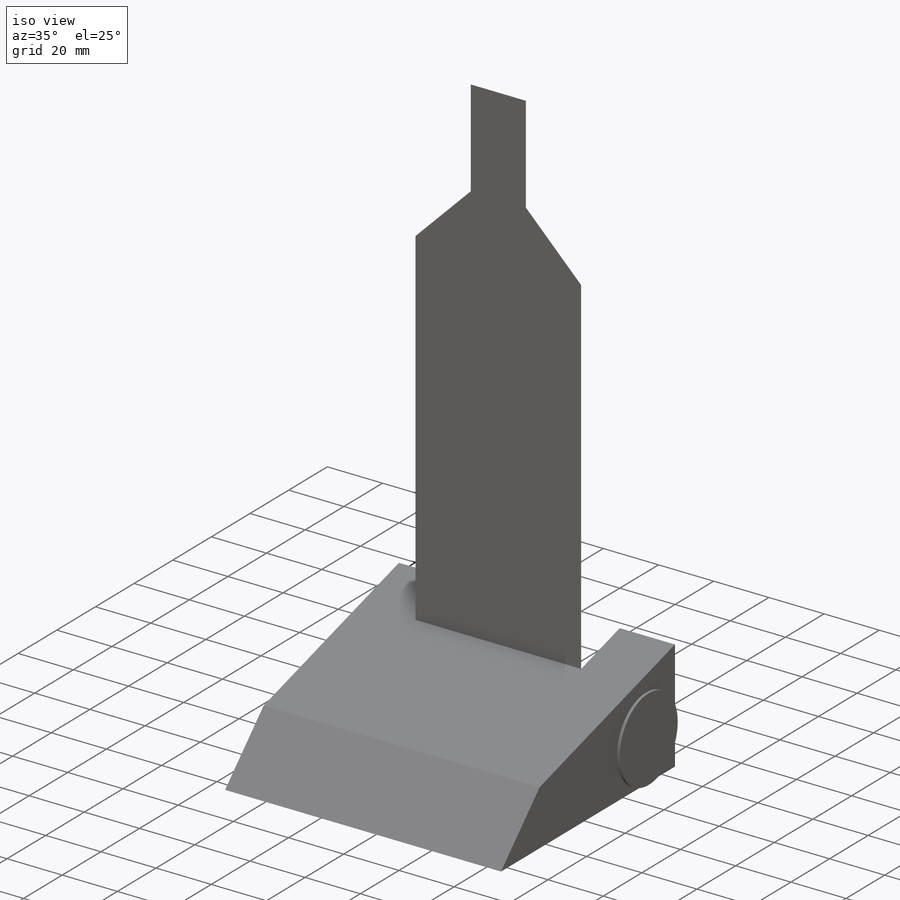
[diagram: iso view]
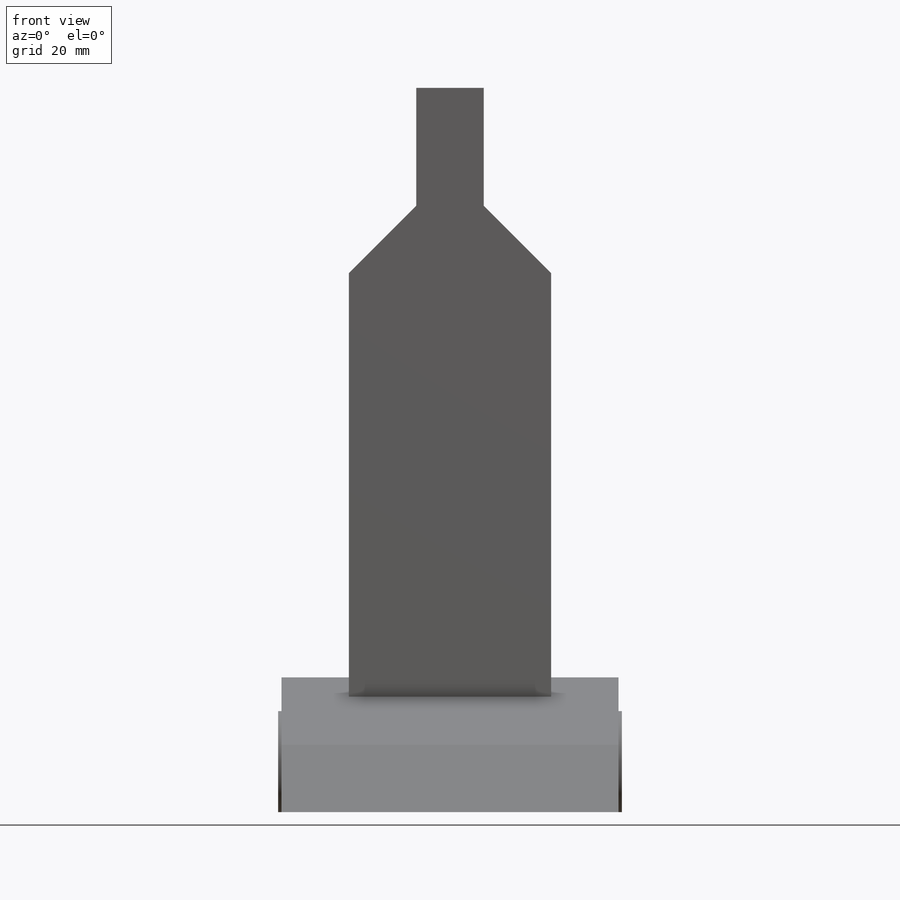
[diagram: front view]
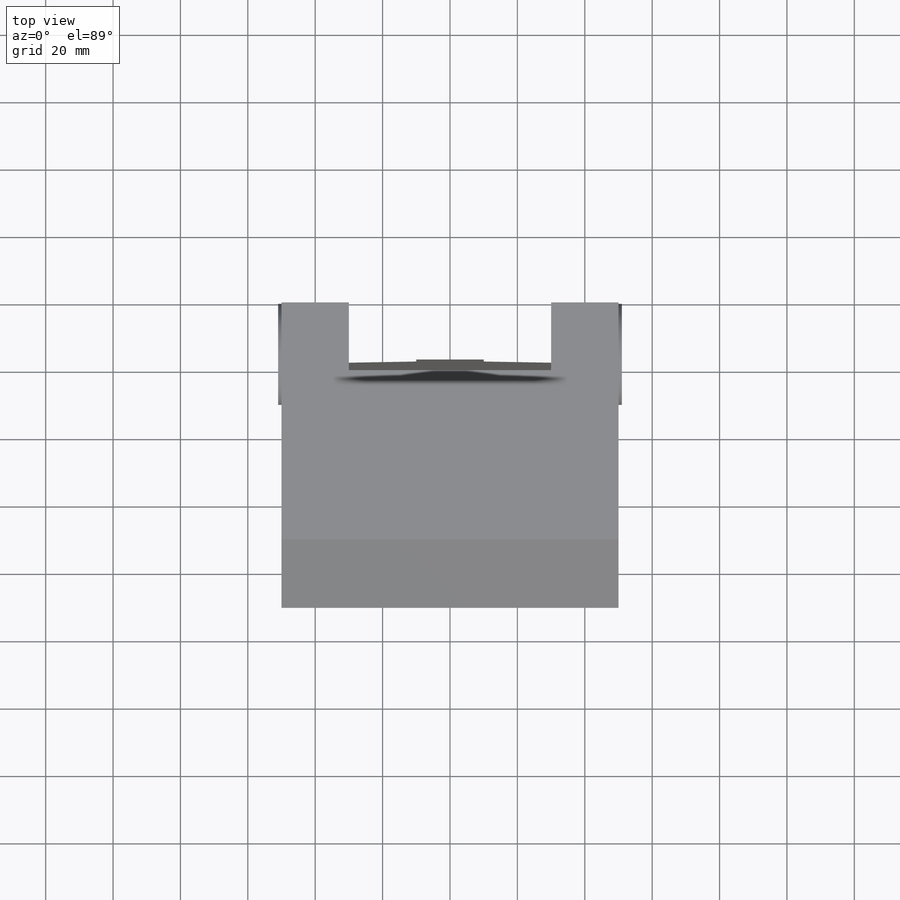
[diagram: top view]
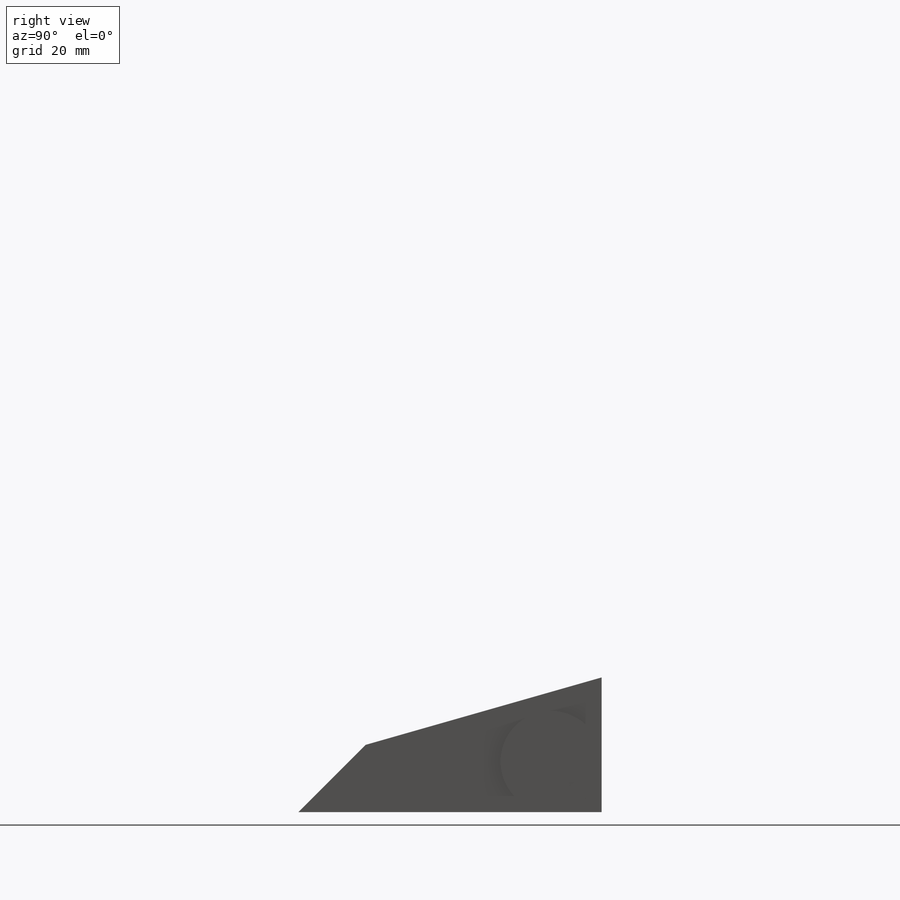
[diagram: right view]
SOLIDWORKS PART (.sldprt)
format: sldprt  version: not decoded by parser v0  size: 335,872 bytes
history: native  units: mm
features: sketch x6, extrude x6, material x1, chamfer x1 (+14 scaffold rows collapsed)
feature tree (28):
  scaffold x14  (default folders/planes/origin — collapsed)
  material  "Material <not specified>"
  sketch  "Sketch1"  dims[c1.D1=40.0mm c1.D2=90.0mm c1.D3=45.0deg c2.D3=20.0mm]
  extrude  "Extrude1"  Depth=100mm
  sketch  "Sketch2"  dims[D1=15.0mm]
  extrude  "Extrude2"  Depth=1mm
  sketch  "Sketch3"  dims[D1=15.0mm]
  extrude  "Extrude3"  Depth=1mm
  sketch  "Sketch4"  dims[D1=20.0mm]
  extrude  "Extrude4"  Depth=180mm
  chamfer  "Chamfer1"  Distance=20mm
  sketch  "Sketch5"
  extrude  "Extrude5"  Depth=30mm
  sketch  "Sketch6"  dims[D1=60.0mm D2=20.0mm]
  extrude  "Extrude6"  Depth=5mm
decode coverage: 12 of 13 modeling features carry decoded parameters
note: suppression state not decoded; provenance and decode notes live in map.json
